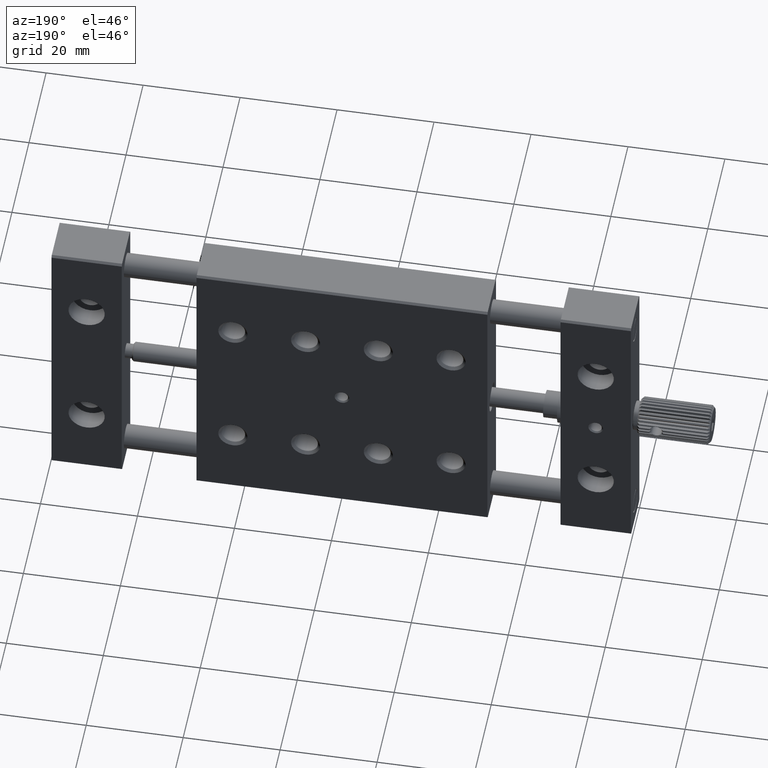
[diagram: clean part render]
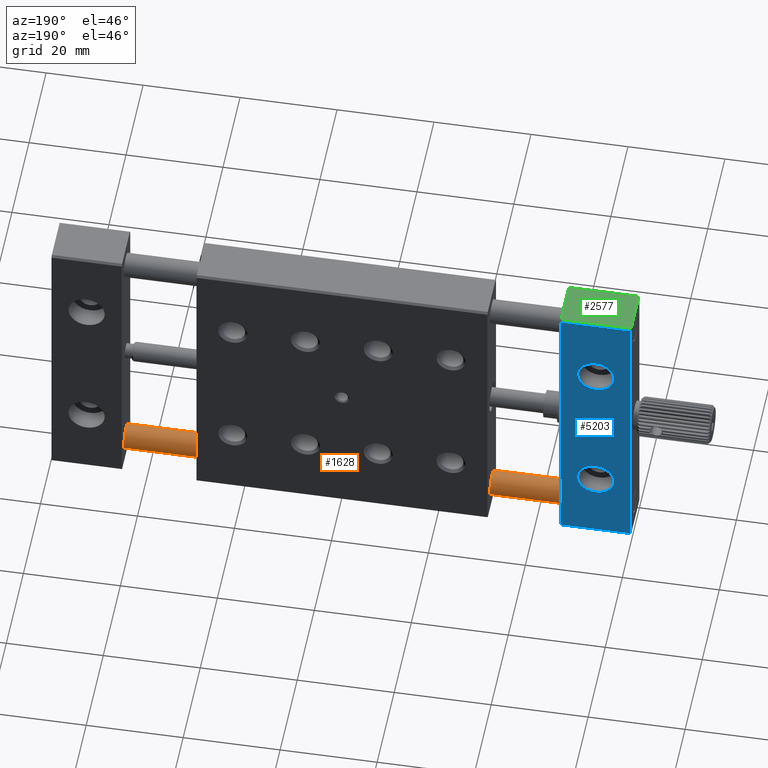
[diagram: same view with three faces highlighted in distinct colors, each labeled with its STEP entity id]
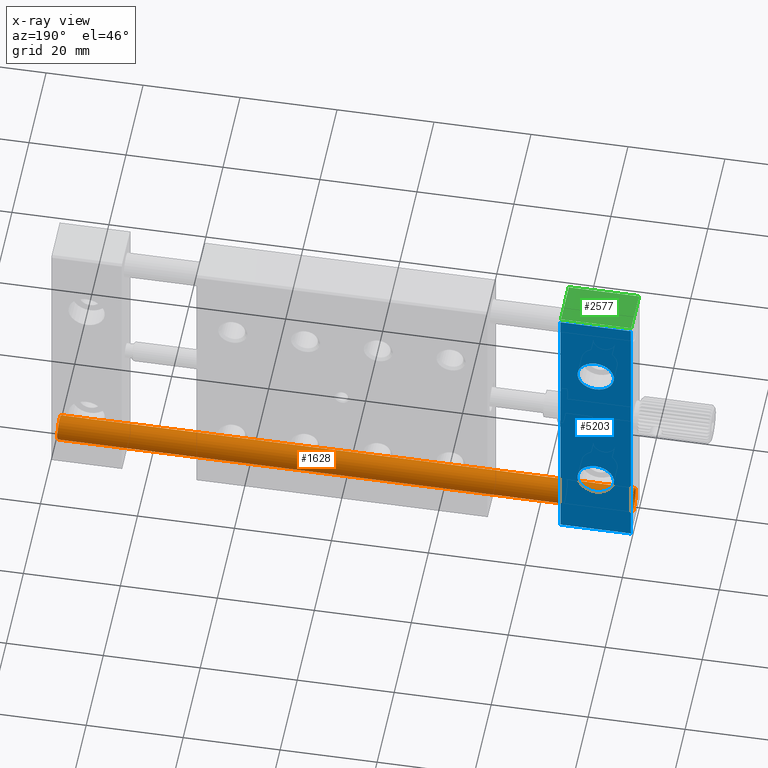
[diagram: x-ray of the same camera — body ghosted, the three highlighted faces saturated]
A machine part, auxiliary view with three faces highlighted in distinct colors.
The next image is the same camera in x-ray (body ghosted, the three faces saturated) — at least one of them is partly hidden behind the body in this view.
Their STEP definitions:

[orange] entity #1628 — the highlighted cylindrical surface (bore or boss wall) has radius 2.4995 mm, axis along (1, 0, 0).
#2 = AXIS2_PLACEMENT_3D ( 'NONE', #4837, #7534, #6876 ) ;
#190 = EDGE_CURVE ( 'NONE', #3044, #3564, #8184, .T. ) ;
#304 = DIRECTION ( 'NONE',  ( 0.000000000000000000, 1.000000000000000000, 0.000000000000000000 ) ) ;
#346 = CARTESIAN_POINT ( 'NONE',  ( 8.499999999999994671, 3.499999999999999556, -53.00062503516722501 ) ) ;
#359 = VERTEX_POINT ( 'NONE', #346 ) ;
#396 = CARTESIAN_POINT ( 'NONE',  ( 119.0000000000000142, 3.499999999999998224, -53.00062503516722501 ) ) ;
#486 = EDGE_LOOP ( 'NONE', ( #758 ) ) ;
#517 = EDGE_CURVE ( 'NONE', #359, #3466, #3860, .T. ) ;
#752 = EDGE_CURVE ( 'NONE', #6169, #3044, #2879, .T. ) ;
#758 = ORIENTED_EDGE ( 'NONE', *, *, #7000, .T. ) ;
#932 = CYLINDRICAL_SURFACE ( 'NONE', #6854, 2.499500000000009603 ) ;
#977 = CIRCLE ( 'NONE', #5908, 2.499500000000009603 ) ;
#997 = CARTESIAN_POINT ( 'NONE',  ( 110.5000000000000000, 5.000000000000000000, -55.00000000000000000 ) ) ;
#1165 = DIRECTION ( 'NONE',  ( 0.000000000000000000, 1.000000000000000000, -2.776112784119704547E-15 ) ) ;
#1194 = DIRECTION ( 'NONE',  ( 1.000000000000000000, 0.000000000000000000, 0.000000000000000000 ) ) ;
#1334 = AXIS2_PLACEMENT_3D ( 'NONE', #2348, #7772, #5659 ) ;
#1596 = DIRECTION ( 'NONE',  ( 0.000000000000000000, 1.000000000000000000, -2.776112784119704547E-15 ) ) ;
#1611 = VERTEX_POINT ( 'NONE', #2278 ) ;
#1628 = ADVANCED_FACE ( 'NONE', ( #3539, #2347, #6369, #6976 ), #932, .T. ) ;
#1897 = VECTOR ( 'NONE', #4121, 1000.000000000000000 ) ;
#1950 = CARTESIAN_POINT ( 'NONE',  ( 8.499999999999992895, 5.000000000000000000, -55.00000000000000000 ) ) ;
#2118 = CARTESIAN_POINT ( 'NONE',  ( 8.499999999999994671, 3.499999999999999556, -56.99937496483277499 ) ) ;
#2278 = CARTESIAN_POINT ( 'NONE',  ( 118.7000000000000028, 7.499500000000010047, -55.00000000000000000 ) ) ;
#2320 = ORIENTED_EDGE ( 'NONE', *, *, #7718, .T. ) ;
#2347 = FACE_OUTER_BOUND ( 'NONE', #7516, .T. ) ;
#2348 = CARTESIAN_POINT ( 'NONE',  ( 113.5000000000000000, 5.000000000000000000, -55.00000000000000000 ) ) ;
#2364 = ORIENTED_EDGE ( 'NONE', *, *, #752, .T. ) ;
#2379 = VERTEX_POINT ( 'NONE', #4876 ) ;
#2608 = LINE ( 'NONE', #3409, #6500 ) ;
#2879 = CIRCLE ( 'NONE', #1334, 2.499500000000009603 ) ;
#3029 = ORIENTED_EDGE ( 'NONE', *, *, #5040, .T. ) ;
#3044 = VERTEX_POINT ( 'NONE', #6504 ) ;
#3299 = LINE ( 'NONE', #6749, #7297 ) ;
#3409 = CARTESIAN_POINT ( 'NONE',  ( 119.0000000000000142, 3.499999999999998224, -53.00062503516722501 ) ) ;
#3438 = EDGE_CURVE ( 'NONE', #3466, #5984, #3299, .T. ) ;
#3464 = ORIENTED_EDGE ( 'NONE', *, *, #190, .T. ) ;
#3466 = VERTEX_POINT ( 'NONE', #2118 ) ;
#3539 = FACE_BOUND ( 'NONE', #7231, .T. ) ;
#3564 = VERTEX_POINT ( 'NONE', #7362 ) ;
#3612 = EDGE_CURVE ( 'NONE', #8644, #8644, #4613, .T. ) ;
#3860 = CIRCLE ( 'NONE', #7810, 2.499500000000009603 ) ;
#3978 = EDGE_LOOP ( 'NONE', ( #5595, #8366, #7911, #3029 ) ) ;
#4121 = DIRECTION ( 'NONE',  ( -1.000000000000000000, -0.000000000000000000, -0.000000000000000000 ) ) ;
#4351 = AXIS2_PLACEMENT_3D ( 'NONE', #997, #5889, #1165 ) ;
#4549 = DIRECTION ( 'NONE',  ( 1.000000000000000000, 0.000000000000000000, 0.000000000000000000 ) ) ;
#4589 = DIRECTION ( 'NONE',  ( 0.000000000000000000, 1.000000000000000000, 0.000000000000000000 ) ) ;
#4613 = CIRCLE ( 'NONE', #8287, 2.499500000000009603 ) ;
#4825 = CARTESIAN_POINT ( 'NONE',  ( 113.5000000000000000, 3.499999999999999112, -53.00062503516722501 ) ) ;
#4837 = CARTESIAN_POINT ( 'NONE',  ( 118.7000000000000028, 5.000000000000000000, -55.00000000000000000 ) ) ;
#4876 = CARTESIAN_POINT ( 'NONE',  ( 5.500000000000003553, 3.499999999999999556, -53.00062503516722501 ) ) ;
#4896 = CARTESIAN_POINT ( 'NONE',  ( 119.0000000000000142, 5.000000000000000000, -55.00000000000000000 ) ) ;
#4969 = CARTESIAN_POINT ( 'NONE',  ( 0.3000000000000085931, 5.000000000000000000, -55.00000000000000000 ) ) ;
#5040 = EDGE_CURVE ( 'NONE', #5984, #2379, #977, .T. ) ;
#5136 = ORIENTED_EDGE ( 'NONE', *, *, #3612, .T. ) ;
#5231 = CARTESIAN_POINT ( 'NONE',  ( 0.3000000000000085931, 7.499500000000010047, -55.00000000000000000 ) ) ;
#5353 = CARTESIAN_POINT ( 'NONE',  ( 119.0000000000000142, 3.499999999999997780, -56.99937496483277499 ) ) ;
#5505 = CARTESIAN_POINT ( 'NONE',  ( 110.5000000000000000, 3.499999999999999112, -53.00062503516722501 ) ) ;
#5595 = ORIENTED_EDGE ( 'NONE', *, *, #7613, .T. ) ;
#5659 = DIRECTION ( 'NONE',  ( 0.000000000000000000, 1.000000000000000000, 0.000000000000000000 ) ) ;
#5679 = DIRECTION ( 'NONE',  ( 0.000000000000000000, 1.000000000000000000, 0.000000000000000000 ) ) ;
#5692 = CARTESIAN_POINT ( 'NONE',  ( 5.500000000000005329, 5.000000000000000000, -55.00000000000000000 ) ) ;
#5792 = VERTEX_POINT ( 'NONE', #5505 ) ;
#5793 = LINE ( 'NONE', #396, #7763 ) ;
#5889 = DIRECTION ( 'NONE',  ( -1.000000000000000000, -0.000000000000000000, -0.000000000000000000 ) ) ;
#5908 = AXIS2_PLACEMENT_3D ( 'NONE', #5692, #7766, #1596 ) ;
#5984 = VERTEX_POINT ( 'NONE', #6554 ) ;
#5983 = EDGE_CURVE ( 'NONE', #3564, #5792, #6198, .T. ) ;
#6065 = CIRCLE ( 'NONE', #2, 2.499500000000009603 ) ;
#6104 = DIRECTION ( 'NONE',  ( 1.000000000000000000, 0.000000000000000000, 0.000000000000000000 ) ) ;
#6169 = VERTEX_POINT ( 'NONE', #4825 ) ;
#6198 = CIRCLE ( 'NONE', #4351, 2.499500000000009603 ) ;
#6369 = FACE_BOUND ( 'NONE', #3978, .T. ) ;
#6500 = VECTOR ( 'NONE', #6104, 1000.000000000000000 ) ;
#6504 = CARTESIAN_POINT ( 'NONE',  ( 113.5000000000000000, 3.499999999999998668, -56.99937496483277499 ) ) ;
#6554 = CARTESIAN_POINT ( 'NONE',  ( 5.500000000000003553, 3.499999999999999556, -56.99937496483277499 ) ) ;
#6749 = CARTESIAN_POINT ( 'NONE',  ( 119.0000000000000142, 3.499999999999997780, -56.99937496483277499 ) ) ;
#6777 = ORIENTED_EDGE ( 'NONE', *, *, #5983, .T. ) ;
#6854 = AXIS2_PLACEMENT_3D ( 'NONE', #4896, #7022, #304 ) ;
#6876 = DIRECTION ( 'NONE',  ( 0.000000000000000000, 1.000000000000000000, 0.000000000000000000 ) ) ;
#6958 = DIRECTION ( 'NONE',  ( 1.000000000000000000, 0.000000000000000000, 0.000000000000000000 ) ) ;
#6976 = FACE_OUTER_BOUND ( 'NONE', #486, .T. ) ;
#7000 = EDGE_CURVE ( 'NONE', #1611, #1611, #6065, .T. ) ;
#7022 = DIRECTION ( 'NONE',  ( 1.000000000000000000, 0.000000000000000000, 0.000000000000000000 ) ) ;
#7231 = EDGE_LOOP ( 'NONE', ( #2320, #2364, #3464, #6777 ) ) ;
#7297 = VECTOR ( 'NONE', #7456, 1000.000000000000000 ) ;
#7362 = CARTESIAN_POINT ( 'NONE',  ( 110.5000000000000000, 3.499999999999998668, -56.99937496483277499 ) ) ;
#7456 = DIRECTION ( 'NONE',  ( -1.000000000000000000, -0.000000000000000000, -0.000000000000000000 ) ) ;
#7516 = EDGE_LOOP ( 'NONE', ( #5136 ) ) ;
#7534 = DIRECTION ( 'NONE',  ( -1.000000000000000000, -0.000000000000000000, -0.000000000000000000 ) ) ;
#7613 = EDGE_CURVE ( 'NONE', #2379, #359, #5793, .T. ) ;
#7718 = EDGE_CURVE ( 'NONE', #5792, #6169, #2608, .T. ) ;
#7763 = VECTOR ( 'NONE', #4549, 1000.000000000000000 ) ;
#7766 = DIRECTION ( 'NONE',  ( -1.000000000000000000, -0.000000000000000000, -0.000000000000000000 ) ) ;
#7772 = DIRECTION ( 'NONE',  ( 1.000000000000000000, 0.000000000000000000, 0.000000000000000000 ) ) ;
#7810 = AXIS2_PLACEMENT_3D ( 'NONE', #1950, #1194, #4589 ) ;
#7911 = ORIENTED_EDGE ( 'NONE', *, *, #3438, .T. ) ;
#8184 = LINE ( 'NONE', #5353, #1897 ) ;
#8287 = AXIS2_PLACEMENT_3D ( 'NONE', #4969, #6958, #5679 ) ;
#8366 = ORIENTED_EDGE ( 'NONE', *, *, #517, .T. ) ;
#8644 = VERTEX_POINT ( 'NONE', #5231 ) ;

[blue] entity #5203 — the highlighted planar face has unit normal (0, -1, 0).
#24 = ORIENTED_EDGE ( 'NONE', *, *, #4727, .F. ) ;
#43 = DIRECTION ( 'NONE',  ( -0.000000000000000000, -0.000000000000000000, 1.000000000000000000 ) ) ;
#50 = ORIENTED_EDGE ( 'NONE', *, *, #306, .F. ) ;
#268 = EDGE_LOOP ( 'NONE', ( #1351, #6587, #1533, #4747 ) ) ;
#306 = EDGE_CURVE ( 'NONE', #327, #327, #7108, .T. ) ;
#327 = VERTEX_POINT ( 'NONE', #7834 ) ;
#498 = VERTEX_POINT ( 'NONE', #3877 ) ;
#500 = VECTOR ( 'NONE', #6998, 1000.000000000000000 ) ;
#614 = CARTESIAN_POINT ( 'NONE',  ( 7.250000000000000000, 10.00000000000000000, -15.00000000000000000 ) ) ;
#615 = AXIS2_PLACEMENT_3D ( 'NONE', #889, #2919, #7025 ) ;
#854 = EDGE_CURVE ( 'NONE', #7094, #7094, #6702, .T. ) ;
#889 = CARTESIAN_POINT ( 'NONE',  ( 7.250000000000000000, 9.999999999990905053, -30.00000000000000000 ) ) ;
#1062 = EDGE_CURVE ( 'NONE', #3347, #498, #7552, .T. ) ;
#1351 = ORIENTED_EDGE ( 'NONE', *, *, #7260, .F. ) ;
#1498 = CARTESIAN_POINT ( 'NONE',  ( 14.50000000000000000, 9.999999999999998224, -59.59000000000000341 ) ) ;
#1501 = EDGE_CURVE ( 'NONE', #3347, #8546, #8133, .T. ) ;
#1533 = ORIENTED_EDGE ( 'NONE', *, *, #1501, .F. ) ;
#2424 = EDGE_CURVE ( 'NONE', #8546, #2593, #6221, .T. ) ;
#2468 = AXIS2_PLACEMENT_3D ( 'NONE', #614, #3311, #8041 ) ;
#2555 = EDGE_LOOP ( 'NONE', ( #7539 ) ) ;
#2593 = VERTEX_POINT ( 'NONE', #6515 ) ;
#2758 = VECTOR ( 'NONE', #5348, 1000.000000000000000 ) ;
#2919 = DIRECTION ( 'NONE',  ( -0.000000000000000000, 1.000000000000000000, 0.000000000000000000 ) ) ;
#3152 = CARTESIAN_POINT ( 'NONE',  ( 14.50000000000000000, 10.00000000000000000, -0.4099999999999937028 ) ) ;
#3219 = FACE_BOUND ( 'NONE', #5551, .T. ) ;
#3311 = DIRECTION ( 'NONE',  ( -0.000000000000000000, 1.000000000000000000, -0.000000000000000000 ) ) ;
#3347 = VERTEX_POINT ( 'NONE', #5189 ) ;
#3396 = VECTOR ( 'NONE', #5844, 1000.000000000000000 ) ;
#3561 = CARTESIAN_POINT ( 'NONE',  ( 14.50000000000000000, 10.00000000000000000, 0.000000000000000000 ) ) ;
#3870 = DIRECTION ( 'NONE',  ( 0.000000000000000000, -0.000000000000000000, -1.000000000000000000 ) ) ;
#3877 = CARTESIAN_POINT ( 'NONE',  ( 0.000000000000000000, 9.999999999999998224, -0.4099999999999945910 ) ) ;
#3927 = AXIS2_PLACEMENT_3D ( 'NONE', #6781, #7438, #6207 ) ;
#4085 = CARTESIAN_POINT ( 'NONE',  ( 7.250000000000000000, 10.00000000000000000, -48.75000000000000000 ) ) ;
#4353 = CIRCLE ( 'NONE', #3927, 3.750000000000003553 ) ;
#4541 = FACE_OUTER_BOUND ( 'NONE', #268, .T. ) ;
#4582 = FACE_BOUND ( 'NONE', #2555, .T. ) ;
#4727 = EDGE_CURVE ( 'NONE', #6213, #6213, #4353, .T. ) ;
#4747 = ORIENTED_EDGE ( 'NONE', *, *, #1062, .T. ) ;
#5189 = CARTESIAN_POINT ( 'NONE',  ( 0.000000000000000000, 9.999999999999998224, -59.59000000000000341 ) ) ;
#5203 = ADVANCED_FACE ( 'NONE', ( #4541, #4582, #7323, #3219 ), #5286, .F. ) ;
#5286 = PLANE ( 'NONE',  #6187 ) ;
#5348 = DIRECTION ( 'NONE',  ( 1.000000000000000000, 0.000000000000000000, 0.000000000000000000 ) ) ;
#5526 = CARTESIAN_POINT ( 'NONE',  ( 14.50000000000000000, 10.00000000000000000, -59.59000000000000341 ) ) ;
#5551 = EDGE_LOOP ( 'NONE', ( #50 ) ) ;
#5771 = CARTESIAN_POINT ( 'NONE',  ( 7.250000000000000000, 10.00000000000000000, -18.75000000000000000 ) ) ;
#5826 = DIRECTION ( 'NONE',  ( 0.000000000000000000, -1.000000000000000000, 0.000000000000000000 ) ) ;
#5844 = DIRECTION ( 'NONE',  ( -1.000000000000000000, -0.000000000000000000, -0.000000000000000000 ) ) ;
#6187 = AXIS2_PLACEMENT_3D ( 'NONE', #8563, #5826, #3870 ) ;
#6207 = DIRECTION ( 'NONE',  ( 0.000000000000000000, 0.000000000000000000, -1.000000000000000000 ) ) ;
#6213 = VERTEX_POINT ( 'NONE', #4085 ) ;
#6221 = LINE ( 'NONE', #3561, #500 ) ;
#6512 = LINE ( 'NONE', #3152, #3396 ) ;
#6515 = CARTESIAN_POINT ( 'NONE',  ( 14.50000000000000000, 9.999999999999998224, -0.4099999999999945910 ) ) ;
#6587 = ORIENTED_EDGE ( 'NONE', *, *, #2424, .F. ) ;
#6702 = CIRCLE ( 'NONE', #2468, 3.750000000000000000 ) ;
#6781 = CARTESIAN_POINT ( 'NONE',  ( 7.250000000000000000, 10.00000000000000000, -45.00000000000000000 ) ) ;
#6848 = VECTOR ( 'NONE', #43, 1000.000000000000000 ) ;
#6849 = CARTESIAN_POINT ( 'NONE',  ( 0.000000000000000000, 10.00000000000000000, 0.000000000000000000 ) ) ;
#6991 = EDGE_LOOP ( 'NONE', ( #24 ) ) ;
#6998 = DIRECTION ( 'NONE',  ( -0.000000000000000000, -0.000000000000000000, 1.000000000000000000 ) ) ;
#7025 = DIRECTION ( 'NONE',  ( 0.000000000000000000, 0.000000000000000000, 1.000000000000000000 ) ) ;
#7094 = VERTEX_POINT ( 'NONE', #5771 ) ;
#7108 = CIRCLE ( 'NONE', #615, 1.499999999991813437 ) ;
#7260 = EDGE_CURVE ( 'NONE', #2593, #498, #6512, .T. ) ;
#7323 = FACE_BOUND ( 'NONE', #6991, .T. ) ;
#7438 = DIRECTION ( 'NONE',  ( -0.000000000000000000, 1.000000000000000000, -0.000000000000000000 ) ) ;
#7539 = ORIENTED_EDGE ( 'NONE', *, *, #854, .F. ) ;
#7552 = LINE ( 'NONE', #6849, #6848 ) ;
#7834 = CARTESIAN_POINT ( 'NONE',  ( 7.250000000000000000, 9.999999999990905053, -28.50000000000818545 ) ) ;
#8041 = DIRECTION ( 'NONE',  ( 0.000000000000000000, 0.000000000000000000, -1.000000000000000000 ) ) ;
#8133 = LINE ( 'NONE', #5526, #2758 ) ;
#8546 = VERTEX_POINT ( 'NONE', #1498 ) ;
#8563 = CARTESIAN_POINT ( 'NONE',  ( 14.50000000000000000, 10.00000000000000000, -59.59000000000000341 ) ) ;

[green] entity #2577 — the highlighted planar face has unit normal (0, 0, -1).
#362 = EDGE_CURVE ( 'NONE', #1692, #1109, #5613, .T. ) ;
#388 = CARTESIAN_POINT ( 'NONE',  ( 0.000000000000000000, 9.589999999999999858, -1.558540622947912624E-16 ) ) ;
#410 = DIRECTION ( 'NONE',  ( -1.000000000000000000, 0.000000000000000000, -0.000000000000000000 ) ) ;
#770 = LINE ( 'NONE', #6987, #1940 ) ;
#1109 = VERTEX_POINT ( 'NONE', #5412 ) ;
#1453 = ORIENTED_EDGE ( 'NONE', *, *, #2204, .F. ) ;
#1692 = VERTEX_POINT ( 'NONE', #388 ) ;
#1940 = VECTOR ( 'NONE', #5496, 1000.000000000000000 ) ;
#2204 = EDGE_CURVE ( 'NONE', #1692, #3557, #8604, .T. ) ;
#2350 = CARTESIAN_POINT ( 'NONE',  ( 0.000000000000000000, 0.000000000000000000, 5.421010862427519705E-17 ) ) ;
#2353 = CARTESIAN_POINT ( 'NONE',  ( 14.50000000000000000, 0.4099999999999999756, 0.000000000000000000 ) ) ;
#2577 = ADVANCED_FACE ( 'NONE', ( #8371 ), #6428, .F. ) ;
#2876 = DIRECTION ( 'NONE',  ( 0.000000000000000000, -1.000000000000000000, -0.000000000000000000 ) ) ;
#2904 = EDGE_CURVE ( 'NONE', #3557, #5562, #770, .T. ) ;
#3557 = VERTEX_POINT ( 'NONE', #8695 ) ;
#3766 = DIRECTION ( 'NONE',  ( 0.000000000000000000, 0.000000000000000000, -1.000000000000000000 ) ) ;
#3808 = CARTESIAN_POINT ( 'NONE',  ( 14.50000000000000000, 9.589999999999999858, 0.000000000000000000 ) ) ;
#3820 = DIRECTION ( 'NONE',  ( 1.000000000000000000, -0.000000000000000000, 0.000000000000000000 ) ) ;
#3996 = ORIENTED_EDGE ( 'NONE', *, *, #6325, .T. ) ;
#4035 = AXIS2_PLACEMENT_3D ( 'NONE', #3808, #3766, #410 ) ;
#4224 = VECTOR ( 'NONE', #5031, 1000.000000000000000 ) ;
#5031 = DIRECTION ( 'NONE',  ( 1.000000000000000000, -0.000000000000000000, 0.000000000000000000 ) ) ;
#5412 = CARTESIAN_POINT ( 'NONE',  ( 0.000000000000000000, 0.4100000000000001421, 1.635934743230549108E-17 ) ) ;
#5414 = VECTOR ( 'NONE', #2876, 1000.000000000000000 ) ;
#5496 = DIRECTION ( 'NONE',  ( 0.000000000000000000, -1.000000000000000000, -0.000000000000000000 ) ) ;
#5562 = VERTEX_POINT ( 'NONE', #8552 ) ;
#5613 = LINE ( 'NONE', #2350, #5414 ) ;
#6325 = EDGE_CURVE ( 'NONE', #1109, #5562, #8395, .T. ) ;
#6397 = CARTESIAN_POINT ( 'NONE',  ( 14.50000000000000000, 9.589999999999999858, 0.000000000000000000 ) ) ;
#6428 = PLANE ( 'NONE',  #4035 ) ;
#6885 = ORIENTED_EDGE ( 'NONE', *, *, #2904, .F. ) ;
#6987 = CARTESIAN_POINT ( 'NONE',  ( 14.50000000000000000, 0.000000000000000000, 5.421010862427519705E-17 ) ) ;
#7363 = EDGE_LOOP ( 'NONE', ( #3996, #6885, #1453, #7505 ) ) ;
#7505 = ORIENTED_EDGE ( 'NONE', *, *, #362, .T. ) ;
#8269 = VECTOR ( 'NONE', #3820, 1000.000000000000000 ) ;
#8371 = FACE_OUTER_BOUND ( 'NONE', #7363, .T. ) ;
#8395 = LINE ( 'NONE', #2353, #4224 ) ;
#8552 = CARTESIAN_POINT ( 'NONE',  ( 14.50000000000000000, 0.4100000000000003086, 1.694065894508600062E-17 ) ) ;
#8604 = LINE ( 'NONE', #6397, #8269 ) ;
#8695 = CARTESIAN_POINT ( 'NONE',  ( 14.50000000000000000, 9.590000000000001634, -2.710505431213761085E-16 ) ) ;